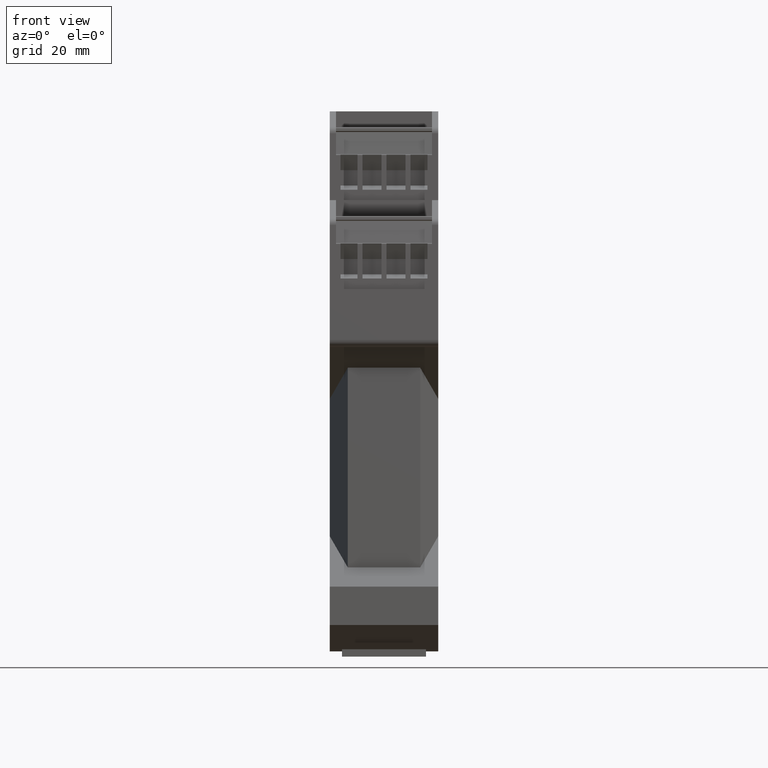
[diagram: clean part render]
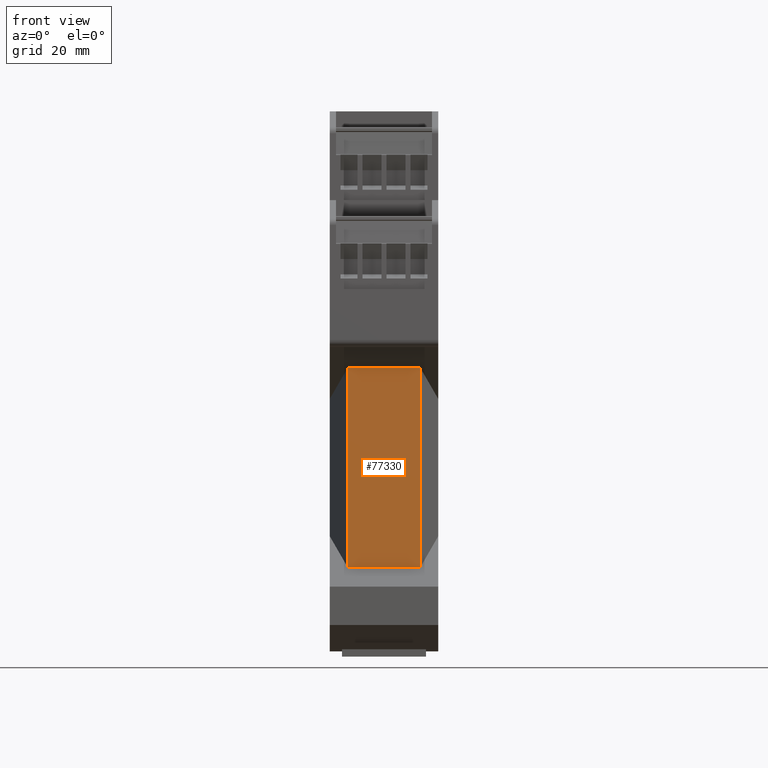
[diagram: same view with one face highlighted and labeled with its STEP entity id]
A machine part, front view. The second image highlights one B-rep face of the part: STEP entity #77330.
In plain terms, the highlighted planar face has unit normal (0, -1, 0).
Its self-contained STEP definition (entity closure, byte-faithful):
#75240=CARTESIAN_POINT('',(-42.5499999999972,12.0000000000029,
3.75277674973097));
#75250=VERTEX_POINT('',#75240);
#75280=CARTESIAN_POINT('',(-42.5499999999972,12.0000000000029,26.4));
#75290=DIRECTION('',(0.,8.7157639921045E-33,-1.));
#75300=VECTOR('',#75290,1.);
#75310=LINE('',#75280,#75300);
#75320=CARTESIAN_POINT('',(-42.5499999999972,12.0000000000029,
18.847223250269));
#75330=VERTEX_POINT('',#75320);
#75340=EDGE_CURVE('',#75330,#75250,#75310,.T.);
#77030=CARTESIAN_POINT('',(-42.5499999999969,53.5999999999983,22.6));
#77040=DIRECTION('',(-1.,6.60000000000173E-15,0.));
#77050=DIRECTION('',(6.60000000000173E-15,1.,0.));
#77060=AXIS2_PLACEMENT_3D('',#77030,#77040,#77050);
#77070=PLANE('',#77060);
#77080=ORIENTED_EDGE('',*,*,#75340,.F.);
#77090=CARTESIAN_POINT('',(-42.5499999999974,-7.99999999993773,
3.75277674973105));
#77100=DIRECTION('',(-6.60000000000173E-15,-1.,3.8105117766525E-15));
#77110=VECTOR('',#77100,1.);
#77120=LINE('',#77090,#77110);
#77130=CARTESIAN_POINT('',(-42.5499999999969,53.5999999999983,
3.75277674973082));
#77140=VERTEX_POINT('',#77130);
#77150=EDGE_CURVE('',#77140,#75250,#77120,.T.);
#77160=ORIENTED_EDGE('',*,*,#77150,.T.);
#77170=CARTESIAN_POINT('',(-42.5499999999969,53.5999999999983,26.4));
#77180=DIRECTION('',(0.,8.71576399210515E-33,-1.));
#77190=VECTOR('',#77180,1.);
#77200=LINE('',#77170,#77190);
#77210=CARTESIAN_POINT('',(-42.5499999999969,53.5999999999983,
18.8472232502692));
#77220=VERTEX_POINT('',#77210);
#77230=EDGE_CURVE('',#77220,#77140,#77200,.T.);
#77240=ORIENTED_EDGE('',*,*,#77230,.T.);
#77250=CARTESIAN_POINT('',(-42.5499999999974,-7.99999999993773,
18.847223250269));
#77260=DIRECTION('',(-6.60000000000172E-15,-1.,-3.8105117766525E-15));
#77270=VECTOR('',#77260,1.);
#77280=LINE('',#77250,#77270);
#77290=EDGE_CURVE('',#77220,#75330,#77280,.T.);
#77300=ORIENTED_EDGE('',*,*,#77290,.F.);
#77310=EDGE_LOOP('',(#77300,#77240,#77160,#77080));
#77320=FACE_OUTER_BOUND('',#77310,.T.);
#77330=ADVANCED_FACE('',(#77320),#77070,.T.);